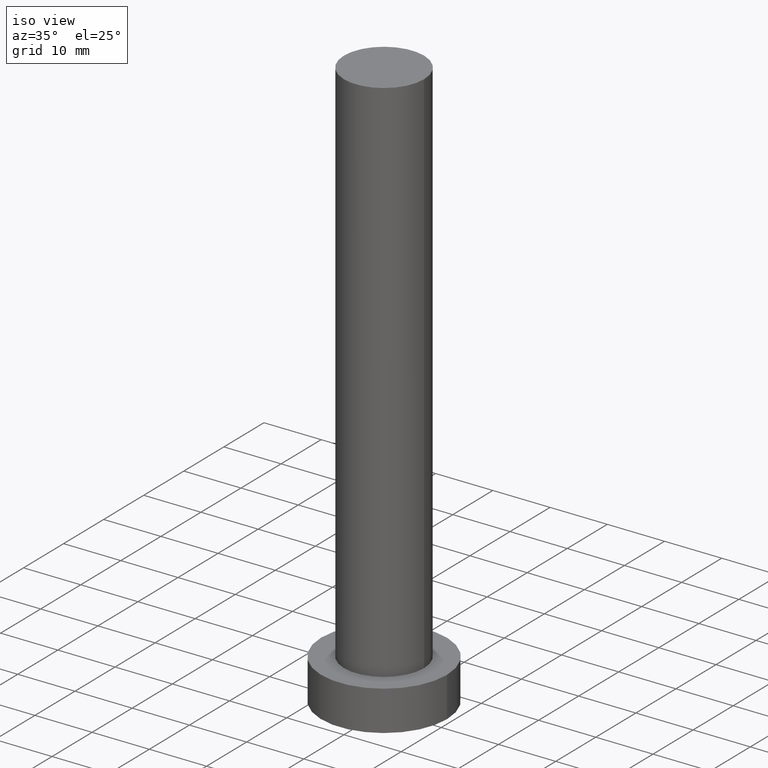
[diagram: clean part render]
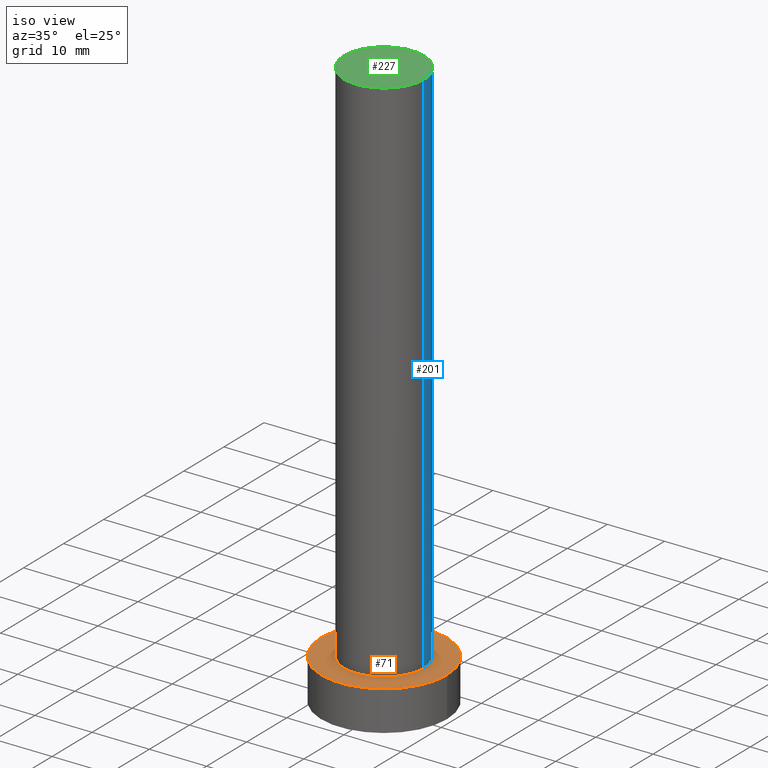
[diagram: same view with three faces highlighted in distinct colors, each labeled with its STEP entity id]
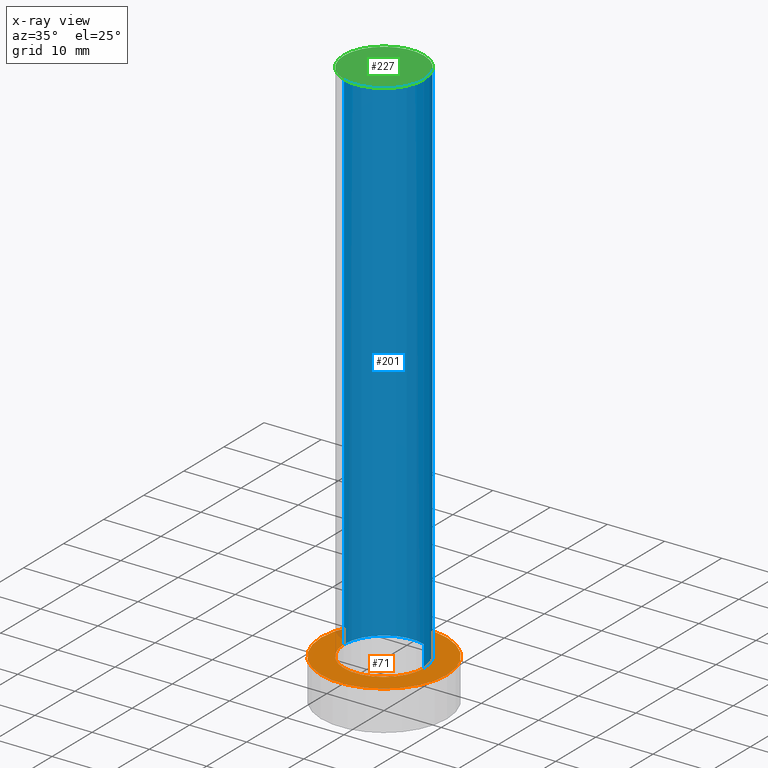
[diagram: x-ray of the same camera — body ghosted, the three highlighted faces saturated]
A machine part, iso view with three faces highlighted in distinct colors.
The next image is the same camera in x-ray (body ghosted, the three faces saturated) — at least one of them is partly hidden behind the body in this view.
Their STEP definitions:

[orange] entity #71 — the highlighted planar face has unit normal (0, 0, 1).
#4 = DIRECTION ( 'NONE',  ( 1.000000000000000000, 0.000000000000000000, 0.000000000000000000 ) ) ;
#5 = AXIS2_PLACEMENT_3D ( 'NONE', #147, #226, #108 ) ;
#9 = AXIS2_PLACEMENT_3D ( 'NONE', #41, #156, #4 ) ;
#22 = DIRECTION ( 'NONE',  ( 1.000000000000000000, 0.000000000000000000, 0.000000000000000000 ) ) ;
#23 = FACE_BOUND ( 'NONE', #104, .T. ) ;
#28 = EDGE_CURVE ( 'NONE', #170, #74, #60, .T. ) ;
#41 = CARTESIAN_POINT ( 'NONE',  ( 0.000000000000000000, 0.000000000000000000, 7.000000000000000000 ) ) ;
#42 = CARTESIAN_POINT ( 'NONE',  ( -7.000000000000000888, 0.000000000000000000, 7.000000000000000000 ) ) ;
#60 = CIRCLE ( 'NONE', #5, 7.000000000000000888 ) ;
#62 = EDGE_CURVE ( 'NONE', #188, #187, #118, .T. ) ;
#68 = AXIS2_PLACEMENT_3D ( 'NONE', #176, #97, #78 ) ;
#69 = ORIENTED_EDGE ( 'NONE', *, *, #28, .F. ) ;
#71 = ADVANCED_FACE ( 'NONE', ( #23, #152 ), #137, .T. ) ;
#73 = ORIENTED_EDGE ( 'NONE', *, *, #163, .F. ) ;
#74 = VERTEX_POINT ( 'NONE', #42 ) ;
#75 = CARTESIAN_POINT ( 'NONE',  ( 7.000000000000000888, 8.572527594031472204E-16, 7.000000000000000000 ) ) ;
#78 = DIRECTION ( 'NONE',  ( 1.000000000000000000, 0.000000000000000000, 0.000000000000000000 ) ) ;
#97 = DIRECTION ( 'NONE',  ( 0.000000000000000000, 0.000000000000000000, 1.000000000000000000 ) ) ;
#99 = CARTESIAN_POINT ( 'NONE',  ( 0.000000000000000000, 0.000000000000000000, 7.000000000000000000 ) ) ;
#100 = CARTESIAN_POINT ( 'NONE',  ( -11.00000000000000000, 0.000000000000000000, 7.000000000000000000 ) ) ;
#104 = EDGE_LOOP ( 'NONE', ( #73, #69 ) ) ;
#108 = DIRECTION ( 'NONE',  ( 1.000000000000000000, 0.000000000000000000, 0.000000000000000000 ) ) ;
#113 = DIRECTION ( 'NONE',  ( 1.000000000000000000, 0.000000000000000000, -0.000000000000000000 ) ) ;
#115 = DIRECTION ( 'NONE',  ( 0.000000000000000000, 0.000000000000000000, 1.000000000000000000 ) ) ;
#118 = CIRCLE ( 'NONE', #9, 11.00000000000000000 ) ;
#135 = CIRCLE ( 'NONE', #68, 7.000000000000000888 ) ;
#136 = EDGE_CURVE ( 'NONE', #187, #188, #178, .T. ) ;
#137 = PLANE ( 'NONE',  #140 ) ;
#140 = AXIS2_PLACEMENT_3D ( 'NONE', #154, #115, #113 ) ;
#147 = CARTESIAN_POINT ( 'NONE',  ( 0.000000000000000000, 0.000000000000000000, 7.000000000000000000 ) ) ;
#148 = ORIENTED_EDGE ( 'NONE', *, *, #62, .T. ) ;
#152 = FACE_OUTER_BOUND ( 'NONE', #250, .T. ) ;
#154 = CARTESIAN_POINT ( 'NONE',  ( 0.000000000000000000, 0.000000000000000000, 7.000000000000000000 ) ) ;
#156 = DIRECTION ( 'NONE',  ( 0.000000000000000000, 0.000000000000000000, 1.000000000000000000 ) ) ;
#163 = EDGE_CURVE ( 'NONE', #74, #170, #135, .T. ) ;
#170 = VERTEX_POINT ( 'NONE', #75 ) ;
#176 = CARTESIAN_POINT ( 'NONE',  ( 0.000000000000000000, 0.000000000000000000, 7.000000000000000000 ) ) ;
#177 = CARTESIAN_POINT ( 'NONE',  ( 11.00000000000000000, 1.347111479062088405E-15, 7.000000000000000000 ) ) ;
#178 = CIRCLE ( 'NONE', #184, 11.00000000000000000 ) ;
#182 = ORIENTED_EDGE ( 'NONE', *, *, #136, .T. ) ;
#184 = AXIS2_PLACEMENT_3D ( 'NONE', #99, #240, #22 ) ;
#187 = VERTEX_POINT ( 'NONE', #100 ) ;
#188 = VERTEX_POINT ( 'NONE', #177 ) ;
#226 = DIRECTION ( 'NONE',  ( 0.000000000000000000, 0.000000000000000000, 1.000000000000000000 ) ) ;
#240 = DIRECTION ( 'NONE',  ( 0.000000000000000000, 0.000000000000000000, 1.000000000000000000 ) ) ;
#250 = EDGE_LOOP ( 'NONE', ( #182, #148 ) ) ;

[blue] entity #201 — the highlighted cylindrical surface (partial cylindrical patch) has radius 7 mm, axis along (-0, -0, -1).
#5 = AXIS2_PLACEMENT_3D ( 'NONE', #147, #226, #108 ) ;
#6 = CARTESIAN_POINT ( 'NONE',  ( 7.000000000000000888, 8.572527594031472204E-16, 100.0000000000000000 ) ) ;
#8 = DIRECTION ( 'NONE',  ( -0.000000000000000000, -0.000000000000000000, -1.000000000000000000 ) ) ;
#14 = ORIENTED_EDGE ( 'NONE', *, *, #28, .T. ) ;
#21 = DIRECTION ( 'NONE',  ( 1.000000000000000000, 0.000000000000000000, 0.000000000000000000 ) ) ;
#28 = EDGE_CURVE ( 'NONE', #170, #74, #60, .T. ) ;
#35 = VECTOR ( 'NONE', #157, 1000.000000000000000 ) ;
#36 = ORIENTED_EDGE ( 'NONE', *, *, #107, .F. ) ;
#37 = CIRCLE ( 'NONE', #221, 7.000000000000000888 ) ;
#42 = CARTESIAN_POINT ( 'NONE',  ( -7.000000000000000888, 0.000000000000000000, 7.000000000000000000 ) ) ;
#56 = CARTESIAN_POINT ( 'NONE',  ( 7.000000000000000888, 8.572527594031472204E-16, 100.0000000000000000 ) ) ;
#58 = DIRECTION ( 'NONE',  ( -1.000000000000000000, 0.000000000000000000, 0.000000000000000000 ) ) ;
#60 = CIRCLE ( 'NONE', #5, 7.000000000000000888 ) ;
#74 = VERTEX_POINT ( 'NONE', #42 ) ;
#75 = CARTESIAN_POINT ( 'NONE',  ( 7.000000000000000888, 8.572527594031472204E-16, 7.000000000000000000 ) ) ;
#76 = DIRECTION ( 'NONE',  ( -0.000000000000000000, -0.000000000000000000, -1.000000000000000000 ) ) ;
#84 = ORIENTED_EDGE ( 'NONE', *, *, #198, .T. ) ;
#96 = CARTESIAN_POINT ( 'NONE',  ( 0.000000000000000000, 0.000000000000000000, 100.0000000000000000 ) ) ;
#107 = EDGE_CURVE ( 'NONE', #223, #74, #197, .T. ) ;
#108 = DIRECTION ( 'NONE',  ( 1.000000000000000000, 0.000000000000000000, 0.000000000000000000 ) ) ;
#112 = FACE_OUTER_BOUND ( 'NONE', #255, .T. ) ;
#132 = CARTESIAN_POINT ( 'NONE',  ( -7.000000000000000888, 0.000000000000000000, 100.0000000000000000 ) ) ;
#147 = CARTESIAN_POINT ( 'NONE',  ( 0.000000000000000000, 0.000000000000000000, 7.000000000000000000 ) ) ;
#157 = DIRECTION ( 'NONE',  ( -0.000000000000000000, -0.000000000000000000, -1.000000000000000000 ) ) ;
#159 = CARTESIAN_POINT ( 'NONE',  ( 0.000000000000000000, 0.000000000000000000, 100.0000000000000000 ) ) ;
#170 = VERTEX_POINT ( 'NONE', #75 ) ;
#174 = LINE ( 'NONE', #6, #196 ) ;
#180 = ORIENTED_EDGE ( 'NONE', *, *, #191, .F. ) ;
#191 = EDGE_CURVE ( 'NONE', #218, #223, #37, .T. ) ;
#196 = VECTOR ( 'NONE', #8, 1000.000000000000000 ) ;
#197 = LINE ( 'NONE', #212, #35 ) ;
#198 = EDGE_CURVE ( 'NONE', #218, #170, #174, .T. ) ;
#201 = ADVANCED_FACE ( 'NONE', ( #112 ), #214, .T. ) ;
#212 = CARTESIAN_POINT ( 'NONE',  ( -7.000000000000000888, 0.000000000000000000, 100.0000000000000000 ) ) ;
#214 = CYLINDRICAL_SURFACE ( 'NONE', #241, 7.000000000000000888 ) ;
#218 = VERTEX_POINT ( 'NONE', #56 ) ;
#221 = AXIS2_PLACEMENT_3D ( 'NONE', #96, #237, #21 ) ;
#223 = VERTEX_POINT ( 'NONE', #132 ) ;
#226 = DIRECTION ( 'NONE',  ( 0.000000000000000000, 0.000000000000000000, 1.000000000000000000 ) ) ;
#237 = DIRECTION ( 'NONE',  ( 0.000000000000000000, 0.000000000000000000, 1.000000000000000000 ) ) ;
#241 = AXIS2_PLACEMENT_3D ( 'NONE', #159, #76, #58 ) ;
#255 = EDGE_LOOP ( 'NONE', ( #180, #84, #14, #36 ) ) ;

[green] entity #227 — the highlighted planar face has unit normal (0, 0, 1).
#1 = EDGE_LOOP ( 'NONE', ( #231, #121 ) ) ;
#11 = CARTESIAN_POINT ( 'NONE',  ( 0.000000000000000000, 0.000000000000000000, 100.0000000000000000 ) ) ;
#21 = DIRECTION ( 'NONE',  ( 1.000000000000000000, 0.000000000000000000, 0.000000000000000000 ) ) ;
#33 = EDGE_CURVE ( 'NONE', #223, #218, #153, .T. ) ;
#37 = CIRCLE ( 'NONE', #221, 7.000000000000000888 ) ;
#40 = AXIS2_PLACEMENT_3D ( 'NONE', #192, #216, #173 ) ;
#45 = FACE_OUTER_BOUND ( 'NONE', #1, .T. ) ;
#56 = CARTESIAN_POINT ( 'NONE',  ( 7.000000000000000888, 8.572527594031472204E-16, 100.0000000000000000 ) ) ;
#66 = DIRECTION ( 'NONE',  ( 0.000000000000000000, 0.000000000000000000, 1.000000000000000000 ) ) ;
#96 = CARTESIAN_POINT ( 'NONE',  ( 0.000000000000000000, 0.000000000000000000, 100.0000000000000000 ) ) ;
#120 = AXIS2_PLACEMENT_3D ( 'NONE', #11, #66, #142 ) ;
#121 = ORIENTED_EDGE ( 'NONE', *, *, #191, .T. ) ;
#132 = CARTESIAN_POINT ( 'NONE',  ( -7.000000000000000888, 0.000000000000000000, 100.0000000000000000 ) ) ;
#142 = DIRECTION ( 'NONE',  ( 1.000000000000000000, 0.000000000000000000, -0.000000000000000000 ) ) ;
#153 = CIRCLE ( 'NONE', #40, 7.000000000000000888 ) ;
#173 = DIRECTION ( 'NONE',  ( 1.000000000000000000, 0.000000000000000000, 0.000000000000000000 ) ) ;
#191 = EDGE_CURVE ( 'NONE', #218, #223, #37, .T. ) ;
#192 = CARTESIAN_POINT ( 'NONE',  ( 0.000000000000000000, 0.000000000000000000, 100.0000000000000000 ) ) ;
#203 = PLANE ( 'NONE',  #120 ) ;
#216 = DIRECTION ( 'NONE',  ( 0.000000000000000000, 0.000000000000000000, 1.000000000000000000 ) ) ;
#218 = VERTEX_POINT ( 'NONE', #56 ) ;
#221 = AXIS2_PLACEMENT_3D ( 'NONE', #96, #237, #21 ) ;
#223 = VERTEX_POINT ( 'NONE', #132 ) ;
#227 = ADVANCED_FACE ( 'NONE', ( #45 ), #203, .T. ) ;
#231 = ORIENTED_EDGE ( 'NONE', *, *, #33, .T. ) ;
#237 = DIRECTION ( 'NONE',  ( 0.000000000000000000, 0.000000000000000000, 1.000000000000000000 ) ) ;